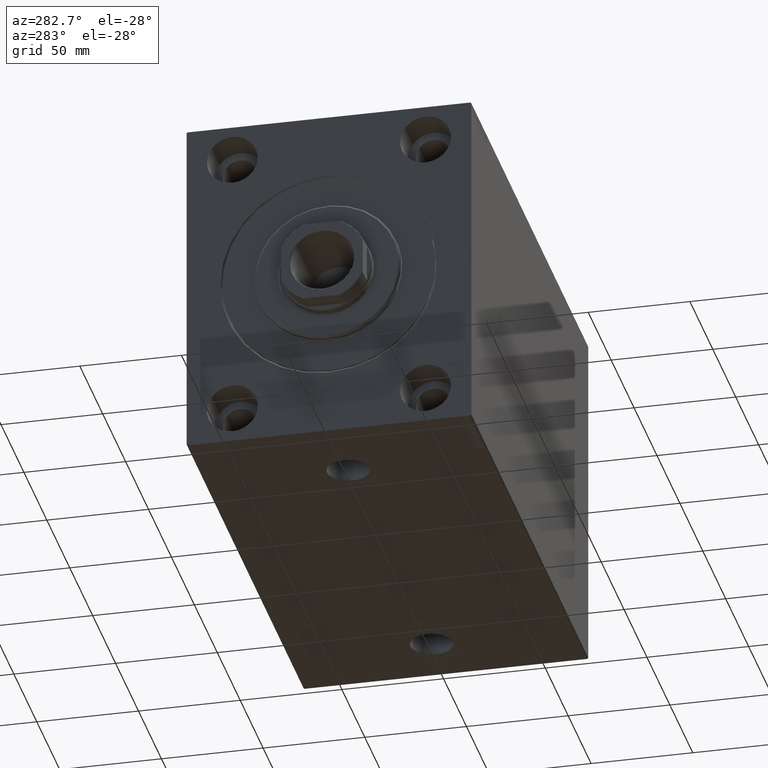
[diagram: clean part render]
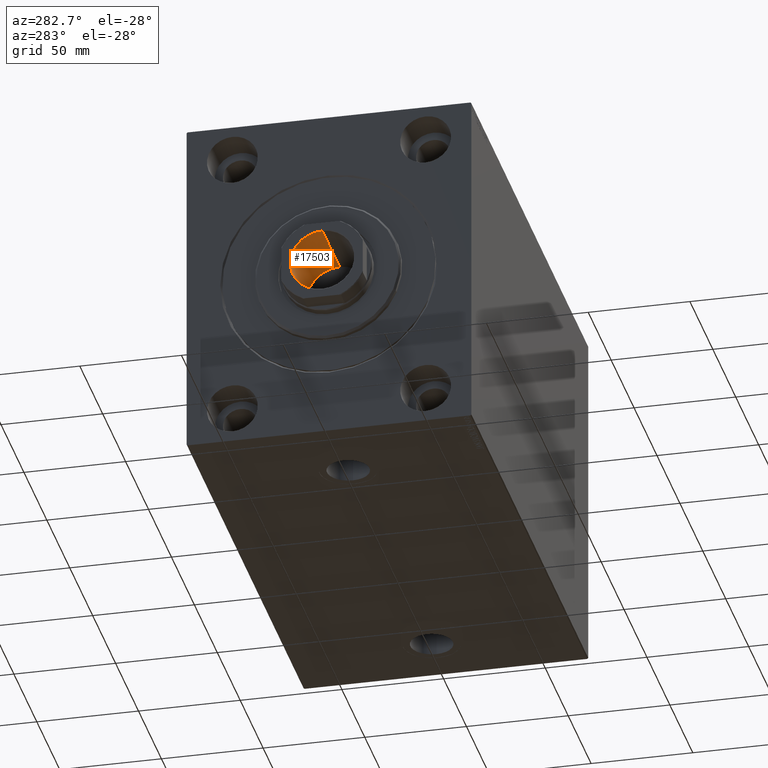
[diagram: same view with one face highlighted and labeled with its STEP entity id]
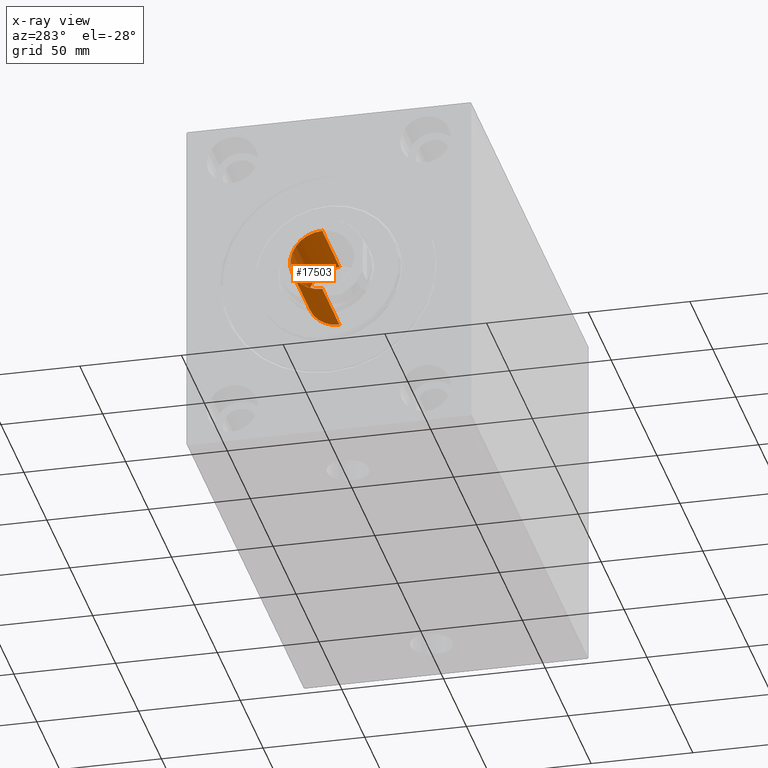
[diagram: x-ray of the same camera — body ghosted, the highlighted face saturated]
A machine part, auxiliary view. The second image highlights one B-rep face of the part: STEP entity #17503.
The next image is the same camera in x-ray: the body ghosted, the highlighted face saturated — about 0% of this face is hidden behind the body in this view.
In plain terms, the highlighted cylindrical surface (edge-blend (fillet) strip) has radius 15.75 mm, axis along (-1, 0, 0).
Its self-contained STEP definition (entity closure, byte-faithful):
#128 = CARTESIAN_POINT ( 'NONE',  ( -15.74999999999999289, 1.928818708657080556E-15, 206.0000000000000284 ) ) ;
#2337 = CIRCLE ( 'NONE', #33090, 15.74999999999999289 ) ;
#2467 = VECTOR ( 'NONE', #11595, 1000.000000000000000 ) ;
#4432 = CARTESIAN_POINT ( 'NONE',  ( 15.74999999999999289, 0.000000000000000000, 243.6999999999999602 ) ) ;
#4490 = CARTESIAN_POINT ( 'NONE',  ( 15.74999999999999289, 0.000000000000000000, 244.0000000000000284 ) ) ;
#4576 = DIRECTION ( 'NONE',  ( 1.000000000000000000, 0.000000000000000000, 0.000000000000000000 ) ) ;
#6264 = VERTEX_POINT ( 'NONE', #33498 ) ;
#6598 = CARTESIAN_POINT ( 'NONE',  ( 0.000000000000000000, 0.000000000000000000, 243.6999999999999602 ) ) ;
#7102 = CYLINDRICAL_SURFACE ( 'NONE', #9447, 15.74999999999999289 ) ;
#9447 = AXIS2_PLACEMENT_3D ( 'NONE', #9858, #20633, #10534 ) ;
#9540 = AXIS2_PLACEMENT_3D ( 'NONE', #29556, #14903, #4576 ) ;
#9858 = CARTESIAN_POINT ( 'NONE',  ( 0.000000000000000000, 0.000000000000000000, 244.0000000000000284 ) ) ;
#10534 = DIRECTION ( 'NONE',  ( 1.000000000000000000, 0.000000000000000000, 0.000000000000000000 ) ) ;
#11595 = DIRECTION ( 'NONE',  ( -0.000000000000000000, -0.000000000000000000, 1.000000000000000000 ) ) ;
#14903 = DIRECTION ( 'NONE',  ( -0.000000000000000000, -0.000000000000000000, 1.000000000000000000 ) ) ;
#15678 = VERTEX_POINT ( 'NONE', #23758 ) ;
#17503 = ADVANCED_FACE ( 'NONE', ( #38497 ), #7102, .F. ) ;
#18434 = VECTOR ( 'NONE', #39968, 1000.000000000000000 ) ;
#19066 = CIRCLE ( 'NONE', #9540, 15.74999999999999289 ) ;
#20633 = DIRECTION ( 'NONE',  ( -0.000000000000000000, -0.000000000000000000, 1.000000000000000000 ) ) ;
#21221 = EDGE_CURVE ( 'NONE', #6264, #26712, #19066, .T. ) ;
#21955 = EDGE_LOOP ( 'NONE', ( #44922, #44241, #37005, #31903 ) ) ;
#22628 = VERTEX_POINT ( 'NONE', #4432 ) ;
#22772 = CARTESIAN_POINT ( 'NONE',  ( -15.74999999999999289, 1.928818708657080556E-15, 244.0000000000000284 ) ) ;
#23758 = CARTESIAN_POINT ( 'NONE',  ( -15.74999999999999289, 1.928818708657080556E-15, 243.6999999999999602 ) ) ;
#24010 = DIRECTION ( 'NONE',  ( 1.000000000000000000, 0.000000000000000000, 0.000000000000000000 ) ) ;
#24463 = DIRECTION ( 'NONE',  ( 0.000000000000000000, 0.000000000000000000, 1.000000000000000000 ) ) ;
#26712 = VERTEX_POINT ( 'NONE', #128 ) ;
#29556 = CARTESIAN_POINT ( 'NONE',  ( 0.000000000000000000, 0.000000000000000000, 206.0000000000000284 ) ) ;
#29650 = LINE ( 'NONE', #22772, #18434 ) ;
#30586 = EDGE_CURVE ( 'NONE', #22628, #15678, #2337, .T. ) ;
#31072 = EDGE_CURVE ( 'NONE', #26712, #15678, #29650, .T. ) ;
#31903 = ORIENTED_EDGE ( 'NONE', *, *, #30586, .T. ) ;
#32900 = LINE ( 'NONE', #4490, #2467 ) ;
#33090 = AXIS2_PLACEMENT_3D ( 'NONE', #6598, #24463, #24010 ) ;
#33498 = CARTESIAN_POINT ( 'NONE',  ( 15.74999999999999289, 0.000000000000000000, 206.0000000000000284 ) ) ;
#34784 = EDGE_CURVE ( 'NONE', #6264, #22628, #32900, .T. ) ;
#37005 = ORIENTED_EDGE ( 'NONE', *, *, #34784, .T. ) ;
#38497 = FACE_OUTER_BOUND ( 'NONE', #21955, .T. ) ;
#39968 = DIRECTION ( 'NONE',  ( -0.000000000000000000, -0.000000000000000000, 1.000000000000000000 ) ) ;
#44241 = ORIENTED_EDGE ( 'NONE', *, *, #21221, .F. ) ;
#44922 = ORIENTED_EDGE ( 'NONE', *, *, #31072, .F. ) ;